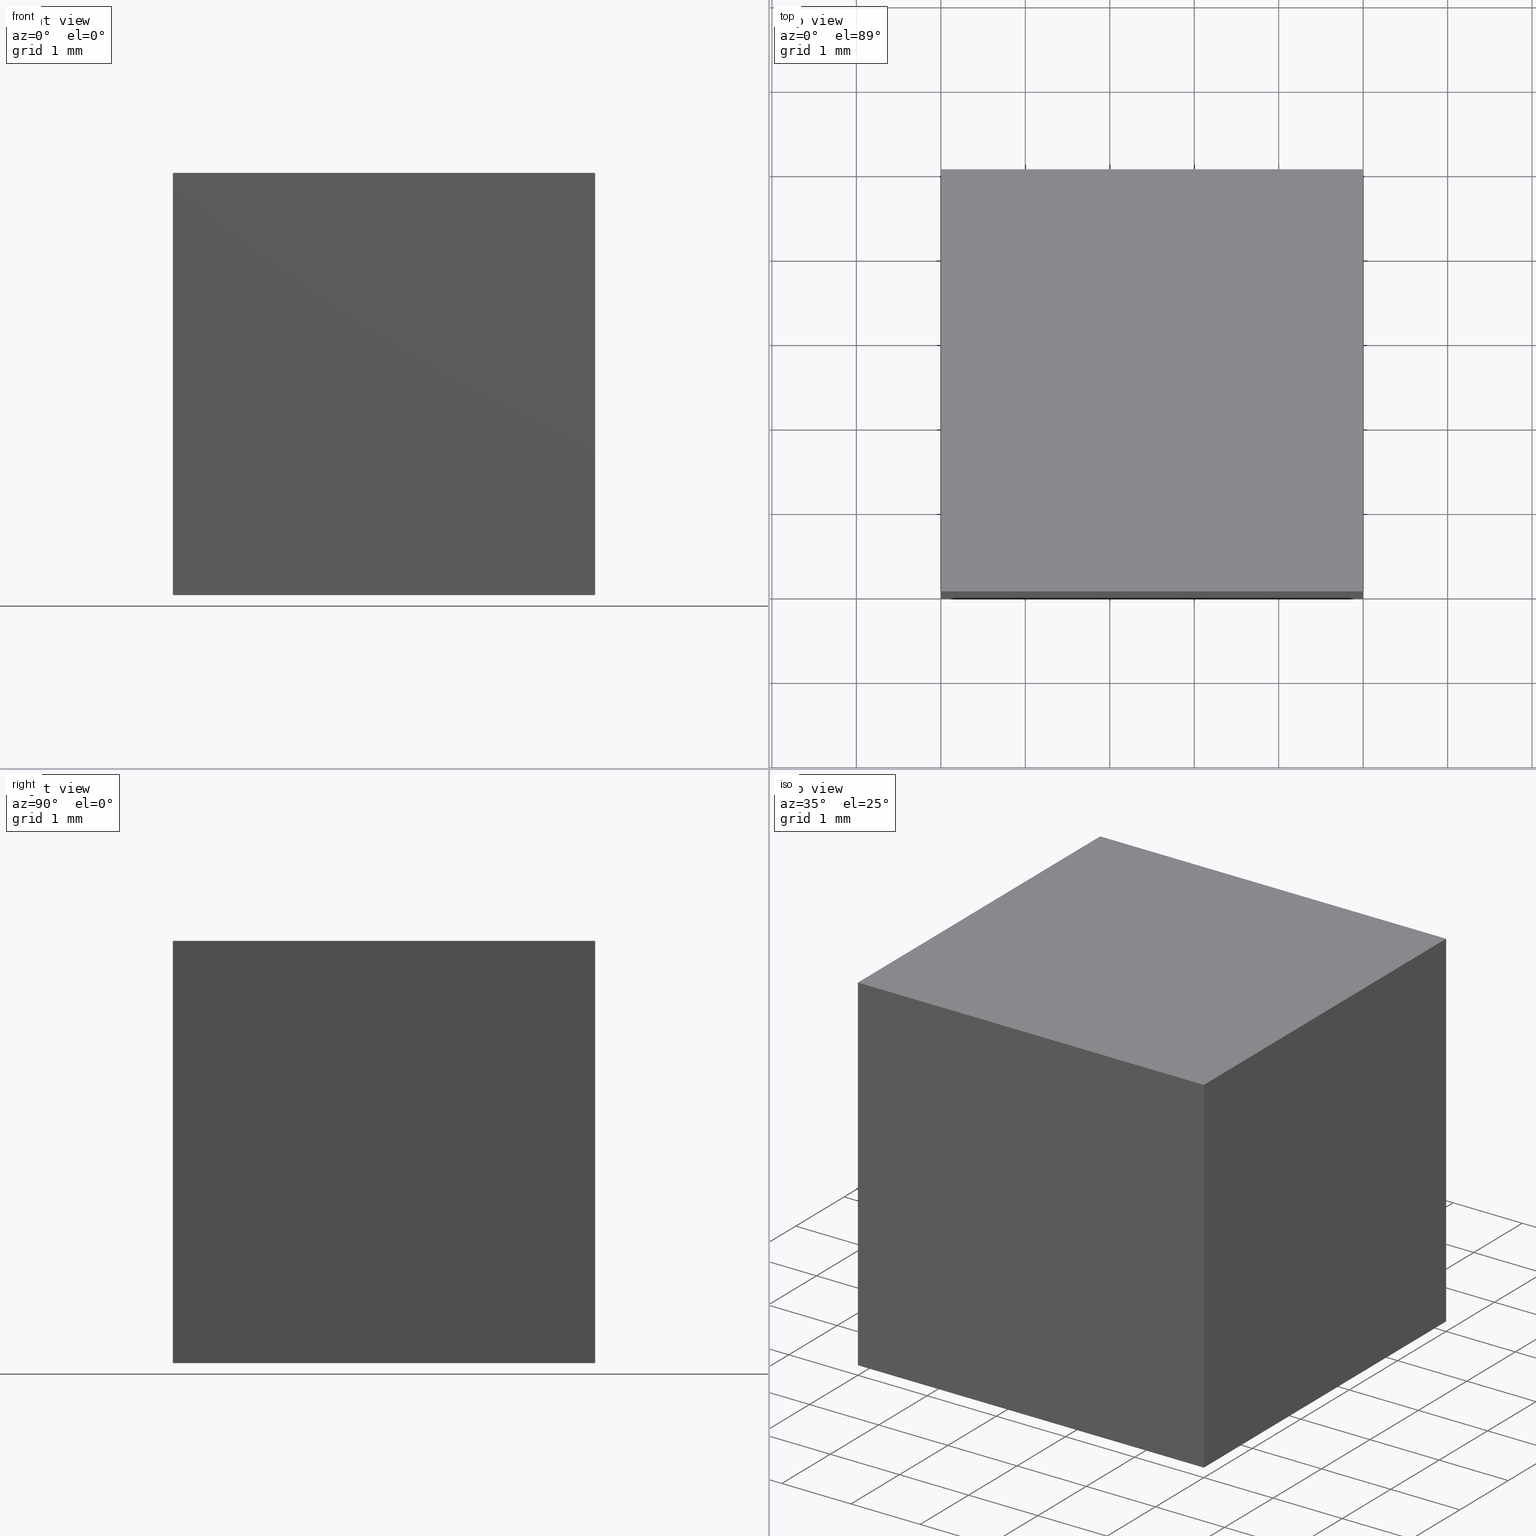
[diagram: canonical four-view strip — front | top / right | iso, engineering-drawing reading convention]
A machine part, canonical four-view strip (front | top / right | iso — engineering-drawing reading convention). The complete STEP part file that produces these views, byte-faithful:
ISO-10303-21;
HEADER;
FILE_DESCRIPTION (( 'STEP AP214' ),
    '1' );
FILE_NAME ('352500.STEP',
    '2019-08-15T01:43:24',
    ( 'user' ),
    ( '΢���й�' ),
    'SwSTEP 2.0',
    'SolidWorks 2016',
    '' );
FILE_SCHEMA (( 'AUTOMOTIVE_DESIGN' ));
ENDSEC;

DATA;
#1 = AXIS2_PLACEMENT_3D ( 'NONE', #292, #79, #125 ) ;
#2 = ORIENTED_EDGE ( 'NONE', *, *, #100, .T. ) ;
#3 = EDGE_CURVE ( 'NONE', #253, #135, #205, .T. ) ;
#4 = PRESENTATION_STYLE_ASSIGNMENT (( #247 ) ) ;
#5 = LINE ( 'NONE', #276, #248 ) ;
#6 = UNCERTAINTY_MEASURE_WITH_UNIT (LENGTH_MEASURE( 1.000000000000000100E-005 ), #156, 'distance_accuracy_value', 'NONE');
#7 = CARTESIAN_POINT ( 'NONE',  ( 0.0000000000000000000, 5.000000000000000000, 0.0000000000000000000 ) ) ;
#8 = DIRECTION ( 'NONE',  ( -0.0000000000000000000, 1.000000000000000000, 0.0000000000000000000 ) ) ;
#9 = DIRECTION ( 'NONE',  ( -1.000000000000000000, 0.0000000000000000000, 1.734723475976807100E-016 ) ) ;
#10 = CARTESIAN_POINT ( 'NONE',  ( 0.0000000000000000000, 5.000000000000000000, -5.000000000000000000 ) ) ;
#11 = CARTESIAN_POINT ( 'NONE',  ( 0.0000000000000000000, 5.000000000000000000, 0.0000000000000000000 ) ) ;
#12 = FILL_AREA_STYLE_COLOUR ( '', #222 ) ;
#13 = ORIENTED_EDGE ( 'NONE', *, *, #3, .F. ) ;
#14 = CARTESIAN_POINT ( 'NONE',  ( 0.0000000000000000000, 0.0000000000000000000, 0.0000000000000000000 ) ) ;
#15 =( NAMED_UNIT ( * ) PLANE_ANGLE_UNIT ( ) SI_UNIT ( $, .RADIAN. ) );
#16 = CARTESIAN_POINT ( 'NONE',  ( 0.0000000000000000000, 5.000000000000000000, 0.0000000000000000000 ) ) ;
#17 = VERTEX_POINT ( 'NONE', #10 ) ;
#18 = AXIS2_PLACEMENT_3D ( 'NONE', #62, #226, #41 ) ;
#19 = ORIENTED_EDGE ( 'NONE', *, *, #47, .F. ) ;
#20 = EDGE_CURVE ( 'NONE', #232, #64, #5, .T. ) ;
#21 = FACE_OUTER_BOUND ( 'NONE', #280, .T. ) ;
#22 = CLOSED_SHELL ( 'NONE', ( #56, #224, #272, #174, #246 ) ) ;
#23 = PRESENTATION_STYLE_ASSIGNMENT (( #296 ) ) ;
#24 = EDGE_CURVE ( 'NONE', #227, #69, #118, .T. ) ;
#25 = FACE_OUTER_BOUND ( 'NONE', #199, .T. ) ;
#26 = SHAPE_DEFINITION_REPRESENTATION ( #257, #60 ) ;
#27 = AXIS2_PLACEMENT_3D ( 'NONE', #11, #8, #148 ) ;
#28 = LINE ( 'NONE', #149, #85 ) ;
#29 = FACE_OUTER_BOUND ( 'NONE', #140, .T. ) ;
#30 = PRODUCT_DEFINITION ( 'δ֪', '', #43, #124 ) ;
#31 = DIRECTION ( 'NONE',  ( -0.0000000000000000000, -1.000000000000000000, -0.0000000000000000000 ) ) ;
#32 = CARTESIAN_POINT ( 'NONE',  ( -5.000000000000000000, -0.0000000000000000000, -4.999999999999999100 ) ) ;
#33 = VECTOR ( 'NONE', #31, 1000.000000000000000 ) ;
#34 = CARTESIAN_POINT ( 'NONE',  ( -5.000000000000000000, 0.0000000000000000000, 0.0000000000000000000 ) ) ;
#35 = ORIENTED_EDGE ( 'NONE', *, *, #191, .T. ) ;
#36 = DIRECTION ( 'NONE',  ( 0.0000000000000000000, 1.000000000000000000, 0.0000000000000000000 ) ) ;
#37 = DIRECTION ( 'NONE',  ( 0.0000000000000000000, -0.0000000000000000000, 1.000000000000000000 ) ) ;
#38 = FACE_OUTER_BOUND ( 'NONE', #258, .T. ) ;
#39 = ADVANCED_FACE ( 'NONE', ( #183 ), #239, .F. ) ;
#40 = EDGE_CURVE ( 'NONE', #17, #253, #28, .T. ) ;
#41 = DIRECTION ( 'NONE',  ( 1.000000000000000000, 0.0000000000000000000, 0.0000000000000000000 ) ) ;
#42 = LINE ( 'NONE', #166, #283 ) ;
#43 = PRODUCT_DEFINITION_FORMATION_WITH_SPECIFIED_SOURCE ( '�κ�', '', #141, .NOT_KNOWN. ) ;
#44 = VERTEX_POINT ( 'NONE', #32 ) ;
#45 = ORIENTED_EDGE ( 'NONE', *, *, #191, .F. ) ;
#46 = ORIENTED_EDGE ( 'NONE', *, *, #207, .T. ) ;
#47 = EDGE_CURVE ( 'NONE', #70, #227, #180, .T. ) ;
#48 = CARTESIAN_POINT ( 'NONE',  ( 0.0000000000000000000, 0.0000000000000000000, 0.0000000000000000000 ) ) ;
#49 = DIRECTION ( 'NONE',  ( -0.7071067811865475700, 0.0000000000000000000, -0.7071067811865474600 ) ) ;
#50 = CARTESIAN_POINT ( 'NONE',  ( 0.0000000000000000000, 5.000000000000000000, 0.0000000000000000000 ) ) ;
#51 = CARTESIAN_POINT ( 'NONE',  ( -5.000000000000000000, 5.000000000000000000, -4.999999999999999100 ) ) ;
#52 = DIRECTION ( 'NONE',  ( -0.0000000000000000000, -1.000000000000000000, -0.0000000000000000000 ) ) ;
#53 = SURFACE_SIDE_STYLE ('',( #86 ) ) ;
#54 = DIRECTION ( 'NONE',  ( -0.0000000000000000000, -0.0000000000000000000, -1.000000000000000000 ) ) ;
#55 = AXIS2_PLACEMENT_3D ( 'NONE', #7, #263, #99 ) ;
#56 = ADVANCED_FACE ( 'NONE', ( #273 ), #213, .F. ) ;
#57 = ORIENTED_EDGE ( 'NONE', *, *, #147, .T. ) ;
#58 =( NAMED_UNIT ( * ) SI_UNIT ( $, .STERADIAN. ) SOLID_ANGLE_UNIT ( ) );
#59 = PRODUCT_RELATED_PRODUCT_CATEGORY ( 'part', '', ( #141 ) ) ;
#60 = ADVANCED_BREP_SHAPE_REPRESENTATION ( '352500', ( #287, #146, #18 ), #175 ) ;
#61 = VECTOR ( 'NONE', #104, 1000.000000000000000 ) ;
#62 = CARTESIAN_POINT ( 'NONE',  ( 0.0000000000000000000, 0.0000000000000000000, 0.0000000000000000000 ) ) ;
#63 = AXIS2_PLACEMENT_3D ( 'NONE', #169, #216, #289 ) ;
#64 = VERTEX_POINT ( 'NONE', #34 ) ;
#65 = SURFACE_STYLE_FILL_AREA ( #277 ) ;
#66 = ORIENTED_EDGE ( 'NONE', *, *, #40, .T. ) ;
#67 = EDGE_CURVE ( 'NONE', #44, #232, #163, .T. ) ;
#68 = ORIENTED_EDGE ( 'NONE', *, *, #88, .T. ) ;
#69 = VERTEX_POINT ( 'NONE', #102 ) ;
#70 = VERTEX_POINT ( 'NONE', #173 ) ;
#71 = ORIENTED_EDGE ( 'NONE', *, *, #3, .T. ) ;
#72 = CARTESIAN_POINT ( 'NONE',  ( -5.000000000000000000, 0.0000000000000000000, -4.999999999999999100 ) ) ;
#73 = DIRECTION ( 'NONE',  ( 0.7071067811865475700, 0.0000000000000000000, 0.7071067811865474600 ) ) ;
#74 = DIRECTION ( 'NONE',  ( 0.7071067811865474600, 0.0000000000000000000, -0.7071067811865475700 ) ) ;
#75 = CARTESIAN_POINT ( 'NONE',  ( 0.0000000000000000000, 5.000000000000000000, 0.0000000000000000000 ) ) ;
#76 = DIRECTION ( 'NONE',  ( 0.7071067811865475700, 0.0000000000000000000, 0.7071067811865474600 ) ) ;
#77 = LINE ( 'NONE', #244, #90 ) ;
#78 = CARTESIAN_POINT ( 'NONE',  ( 0.0000000000000000000, 0.0000000000000000000, -5.000000000000000000 ) ) ;
#79 = DIRECTION ( 'NONE',  ( -0.0000000000000000000, 0.0000000000000000000, 1.000000000000000000 ) ) ;
#80 = ORIENTED_EDGE ( 'NONE', *, *, #47, .T. ) ;
#81 = CARTESIAN_POINT ( 'NONE',  ( -5.000000000000000000, 5.000000000000000000, -4.999999999999999100 ) ) ;
#82 = FILL_AREA_STYLE_COLOUR ( '', #204 ) ;
#83 = ADVANCED_FACE ( 'NONE', ( #38 ), #129, .T. ) ;
#84 =( NAMED_UNIT ( * ) PLANE_ANGLE_UNIT ( ) SI_UNIT ( $, .RADIAN. ) );
#85 = VECTOR ( 'NONE', #9, 1000.000000000000000 ) ;
#86 = SURFACE_STYLE_FILL_AREA ( #218 ) ;
#87 =( LENGTH_UNIT ( ) NAMED_UNIT ( * ) SI_UNIT ( .MILLI., .METRE. ) );
#88 = EDGE_CURVE ( 'NONE', #69, #70, #212, .T. ) ;
#89 = PRODUCT_CONTEXT ( 'NONE', #133, 'mechanical' ) ;
#90 = VECTOR ( 'NONE', #52, 1000.000000000000000 ) ;
#91 = VECTOR ( 'NONE', #192, 1000.000000000000000 ) ;
#92 = AXIS2_PLACEMENT_3D ( 'NONE', #122, #103, #265 ) ;
#93 = ORIENTED_EDGE ( 'NONE', *, *, #164, .T. ) ;
#94 = VECTOR ( 'NONE', #54, 1000.000000000000000 ) ;
#95 = AXIS2_PLACEMENT_3D ( 'NONE', #121, #74, #49 ) ;
#96 = LINE ( 'NONE', #188, #33 ) ;
#97 = ORIENTED_EDGE ( 'NONE', *, *, #181, .F. ) ;
#98 = VECTOR ( 'NONE', #297, 1000.000000000000000 ) ;
#99 = DIRECTION ( 'NONE',  ( 0.0000000000000000000, 0.0000000000000000000, 1.000000000000000000 ) ) ;
#100 = EDGE_CURVE ( 'NONE', #64, #44, #282, .T. ) ;
#101 = PLANE ( 'NONE',  #92 ) ;
#102 = CARTESIAN_POINT ( 'NONE',  ( -5.000000000000000000, 5.000000000000000000, 0.0000000000000000000 ) ) ;
#103 = DIRECTION ( 'NONE',  ( -0.0000000000000000000, 1.000000000000000000, 0.0000000000000000000 ) ) ;
#104 = DIRECTION ( 'NONE',  ( -1.000000000000000000, -0.0000000000000000000, -0.0000000000000000000 ) ) ;
#105 = CARTESIAN_POINT ( 'NONE',  ( -5.000000000000000000, 5.000000000000000000, -4.999999999999999100 ) ) ;
#106 = DIRECTION ( 'NONE',  ( 0.7071067811865474600, 0.0000000000000000000, -0.7071067811865475700 ) ) ;
#107 = CARTESIAN_POINT ( 'NONE',  ( 0.0000000000000000000, 0.0000000000000000000, 0.0000000000000000000 ) ) ;
#108 = STYLED_ITEM ( 'NONE', ( #23 ), #287 ) ;
#109 = SURFACE_SIDE_STYLE ('',( #65 ) ) ;
#110 = ORIENTED_EDGE ( 'NONE', *, *, #100, .F. ) ;
#111 = ORIENTED_EDGE ( 'NONE', *, *, #67, .T. ) ;
#112 = ORIENTED_EDGE ( 'NONE', *, *, #147, .F. ) ;
#113 = UNCERTAINTY_MEASURE_WITH_UNIT (LENGTH_MEASURE( 1.000000000000000100E-005 ), #87, 'distance_accuracy_value', 'NONE');
#114 = EDGE_LOOP ( 'NONE', ( #132, #45, #230, #198 ) ) ;
#115 = EDGE_CURVE ( 'NONE', #227, #232, #160, .T. ) ;
#116 = AXIS2_PLACEMENT_3D ( 'NONE', #217, #299, #221 ) ;
#117 = ORIENTED_EDGE ( 'NONE', *, *, #134, .F. ) ;
#118 = LINE ( 'NONE', #197, #61 ) ;
#119 = CARTESIAN_POINT ( 'NONE',  ( -5.000000000000000000, 5.000000000000000000, -4.999999999999999100 ) ) ;
#120 = AXIS2_PLACEMENT_3D ( 'NONE', #16, #36, #37 ) ;
#121 = CARTESIAN_POINT ( 'NONE',  ( -5.000000000000000000, 5.000000000000000000, -4.999999999999999100 ) ) ;
#122 = CARTESIAN_POINT ( 'NONE',  ( 0.0000000000000000000, 0.0000000000000000000, 0.0000000000000000000 ) ) ;
#123 = DIRECTION ( 'NONE',  ( -0.0000000000000000000, -1.000000000000000000, -0.0000000000000000000 ) ) ;
#124 = PRODUCT_DEFINITION_CONTEXT ( 'detailed design', #249, 'design' ) ;
#125 = DIRECTION ( 'NONE',  ( 1.000000000000000000, 0.0000000000000000000, 0.0000000000000000000 ) ) ;
#126 = DIRECTION ( 'NONE',  ( 0.0000000000000000000, -1.000000000000000000, 0.0000000000000000000 ) ) ;
#127 = FILL_AREA_STYLE ('',( #82 ) ) ;
#128 = COLOUR_RGB ( '',1.000000000000000000, 1.000000000000000000, 1.000000000000000000 ) ;
#129 = PLANE ( 'NONE',  #120 ) ;
#130 =( LENGTH_UNIT ( ) NAMED_UNIT ( * ) SI_UNIT ( .MILLI., .METRE. ) );
#131 = ADVANCED_FACE ( 'NONE', ( #29 ), #295, .T. ) ;
#132 = ORIENTED_EDGE ( 'NONE', *, *, #286, .T. ) ;
#133 = APPLICATION_CONTEXT ( 'automotive_design' ) ;
#134 = EDGE_CURVE ( 'NONE', #70, #44, #144, .T. ) ;
#135 = VERTEX_POINT ( 'NONE', #241 ) ;
#136 = PRESENTATION_LAYER_ASSIGNMENT (  '', '', ( #108 ) ) ;
#137 = ORIENTED_EDGE ( 'NONE', *, *, #20, .T. ) ;
#138 = STYLED_ITEM ( 'NONE', ( #200 ), #146 ) ;
#139 = FACE_OUTER_BOUND ( 'NONE', #178, .T. ) ;
#140 = EDGE_LOOP ( 'NONE', ( #110, #97, #68, #182 ) ) ;
#141 = PRODUCT ( '352500', '352500', '', ( #89 ) ) ;
#142 =( GEOMETRIC_REPRESENTATION_CONTEXT ( 3 ) GLOBAL_UNCERTAINTY_ASSIGNED_CONTEXT ( ( #6 ) ) GLOBAL_UNIT_ASSIGNED_CONTEXT ( ( #156, #15, #219 ) ) REPRESENTATION_CONTEXT ( 'NONE', 'WORKASPACE' ) );
#143 = VECTOR ( 'NONE', #123, 1000.000000000000000 ) ;
#144 = LINE ( 'NONE', #51, #206 ) ;
#145 = CARTESIAN_POINT ( 'NONE',  ( 0.0000000000000000000, 5.000000000000000000, 0.0000000000000000000 ) ) ;
#146 = MANIFOLD_SOLID_BREP ( '͹̨-����2', #176 ) ;
#147 = EDGE_CURVE ( 'NONE', #187, #135, #281, .T. ) ;
#148 = DIRECTION ( 'NONE',  ( 0.0000000000000000000, -0.0000000000000000000, 1.000000000000000000 ) ) ;
#149 = CARTESIAN_POINT ( 'NONE',  ( 0.0000000000000000000, 5.000000000000000000, -5.000000000000000000 ) ) ;
#150 =( NAMED_UNIT ( * ) SI_UNIT ( $, .STERADIAN. ) SOLID_ANGLE_UNIT ( ) );
#151 = SURFACE_STYLE_FILL_AREA ( #127 ) ;
#152 = ORIENTED_EDGE ( 'NONE', *, *, #20, .F. ) ;
#153 = CARTESIAN_POINT ( 'NONE',  ( 0.0000000000000000000, 0.0000000000000000000, 0.0000000000000000000 ) ) ;
#154 = FACE_OUTER_BOUND ( 'NONE', #159, .T. ) ;
#155 = DIRECTION ( 'NONE',  ( -1.000000000000000000, 0.0000000000000000000, 0.0000000000000000000 ) ) ;
#156 =( LENGTH_UNIT ( ) NAMED_UNIT ( * ) SI_UNIT ( .MILLI., .METRE. ) );
#157 = ADVANCED_FACE ( 'NONE', ( #262 ), #240, .T. ) ;
#158 = MECHANICAL_DESIGN_GEOMETRIC_PRESENTATION_REPRESENTATION (  '', ( #108 ), #142 ) ;
#159 = EDGE_LOOP ( 'NONE', ( #46, #93, #66 ) ) ;
#160 = LINE ( 'NONE', #243, #275 ) ;
#161 = AXIS2_PLACEMENT_3D ( 'NONE', #105, #155, #194 ) ;
#162 = LINE ( 'NONE', #119, #208 ) ;
#163 = LINE ( 'NONE', #14, #98 ) ;
#164 = EDGE_CURVE ( 'NONE', #165, #17, #269, .T. ) ;
#165 = VERTEX_POINT ( 'NONE', #75 ) ;
#166 = CARTESIAN_POINT ( 'NONE',  ( -5.000000000000000000, 5.000000000000000000, 0.0000000000000000000 ) ) ;
#167 = PRESENTATION_LAYER_ASSIGNMENT (  '', '', ( #138 ) ) ;
#168 = DIRECTION ( 'NONE',  ( -0.7071067811865475700, 0.0000000000000000000, -0.7071067811865474600 ) ) ;
#169 = CARTESIAN_POINT ( 'NONE',  ( 0.0000000000000000000, 0.0000000000000000000, 0.0000000000000000000 ) ) ;
#170 = DIRECTION ( 'NONE',  ( 0.0000000000000000000, -1.000000000000000000, 0.0000000000000000000 ) ) ;
#171 =( NAMED_UNIT ( * ) PLANE_ANGLE_UNIT ( ) SI_UNIT ( $, .RADIAN. ) );
#172 = SURFACE_SIDE_STYLE ('',( #151 ) ) ;
#173 = CARTESIAN_POINT ( 'NONE',  ( -5.000000000000000000, 5.000000000000000000, -4.999999999999999100 ) ) ;
#174 = ADVANCED_FACE ( 'NONE', ( #154 ), #214, .T. ) ;
#175 =( GEOMETRIC_REPRESENTATION_CONTEXT ( 3 ) GLOBAL_UNCERTAINTY_ASSIGNED_CONTEXT ( ( #201 ) ) GLOBAL_UNIT_ASSIGNED_CONTEXT ( ( #130, #171, #193 ) ) REPRESENTATION_CONTEXT ( 'NONE', 'WORKASPACE' ) );
#176 = CLOSED_SHELL ( 'NONE', ( #298, #131, #157, #83, #39 ) ) ;
#177 = VERTEX_POINT ( 'NONE', #48 ) ;
#178 = EDGE_LOOP ( 'NONE', ( #57, #13, #190, #35 ) ) ;
#179 = APPLICATION_PROTOCOL_DEFINITION ( 'draft international standard', 'automotive_design', 1998, #249 ) ;
#180 = LINE ( 'NONE', #264, #234 ) ;
#181 = EDGE_CURVE ( 'NONE', #69, #64, #42, .T. ) ;
#182 = ORIENTED_EDGE ( 'NONE', *, *, #134, .T. ) ;
#183 = FACE_OUTER_BOUND ( 'NONE', #300, .T. ) ;
#184 = ORIENTED_EDGE ( 'NONE', *, *, #115, .F. ) ;
#185 = AXIS2_PLACEMENT_3D ( 'NONE', #271, #106, #168 ) ;
#186 = ORIENTED_EDGE ( 'NONE', *, *, #254, .F. ) ;
#187 = VERTEX_POINT ( 'NONE', #288 ) ;
#188 = CARTESIAN_POINT ( 'NONE',  ( 0.0000000000000000000, 5.000000000000000000, -5.000000000000000000 ) ) ;
#189 = ORIENTED_EDGE ( 'NONE', *, *, #286, .F. ) ;
#190 = ORIENTED_EDGE ( 'NONE', *, *, #40, .F. ) ;
#191 = EDGE_CURVE ( 'NONE', #17, #187, #96, .T. ) ;
#192 = DIRECTION ( 'NONE',  ( 0.0000000000000000000, 0.0000000000000000000, -1.000000000000000000 ) ) ;
#193 =( NAMED_UNIT ( * ) SI_UNIT ( $, .STERADIAN. ) SOLID_ANGLE_UNIT ( ) );
#194 = DIRECTION ( 'NONE',  ( 0.0000000000000000000, 0.0000000000000000000, 1.000000000000000000 ) ) ;
#195 = ORIENTED_EDGE ( 'NONE', *, *, #181, .T. ) ;
#196 = CARTESIAN_POINT ( 'NONE',  ( -5.000000000000000000, -0.0000000000000000000, -4.999999999999999100 ) ) ;
#197 = CARTESIAN_POINT ( 'NONE',  ( -5.000000000000000000, 5.000000000000000000, 0.0000000000000000000 ) ) ;
#198 = ORIENTED_EDGE ( 'NONE', *, *, #278, .T. ) ;
#199 = EDGE_LOOP ( 'NONE', ( #186, #112, #189 ) ) ;
#200 = PRESENTATION_STYLE_ASSIGNMENT (( #293 ) ) ;
#201 = UNCERTAINTY_MEASURE_WITH_UNIT (LENGTH_MEASURE( 1.000000000000000100E-005 ), #130, 'distance_accuracy_value', 'NONE');
#202 = APPLICATION_PROTOCOL_DEFINITION ( 'draft international standard', 'automotive_design', 1998, #133 ) ;
#203 = VECTOR ( 'NONE', #76, 1000.000000000000000 ) ;
#204 = COLOUR_RGB ( '',1.000000000000000000, 1.000000000000000000, 1.000000000000000000 ) ;
#205 = LINE ( 'NONE', #291, #143 ) ;
#206 = VECTOR ( 'NONE', #126, 1000.000000000000000 ) ;
#207 = EDGE_CURVE ( 'NONE', #253, #165, #162, .T. ) ;
#208 = VECTOR ( 'NONE', #73, 1000.000000000000000 ) ;
#209 = ORIENTED_EDGE ( 'NONE', *, *, #207, .F. ) ;
#210 = VECTOR ( 'NONE', #270, 1000.000000000000000 ) ;
#211 = ORIENTED_EDGE ( 'NONE', *, *, #24, .F. ) ;
#212 = LINE ( 'NONE', #81, #284 ) ;
#213 = PLANE ( 'NONE',  #95 ) ;
#214 = PLANE ( 'NONE',  #27 ) ;
#215 = FACE_OUTER_BOUND ( 'NONE', #114, .T. ) ;
#216 = DIRECTION ( 'NONE',  ( 0.0000000000000000000, 1.000000000000000000, 0.0000000000000000000 ) ) ;
#217 = CARTESIAN_POINT ( 'NONE',  ( 0.0000000000000000000, 5.000000000000000000, -5.000000000000000000 ) ) ;
#218 = FILL_AREA_STYLE ('',( #12 ) ) ;
#219 =( NAMED_UNIT ( * ) SI_UNIT ( $, .STERADIAN. ) SOLID_ANGLE_UNIT ( ) );
#220 = DIRECTION ( 'NONE',  ( -0.0000000000000000000, -0.0000000000000000000, -1.000000000000000000 ) ) ;
#221 = DIRECTION ( 'NONE',  ( 1.000000000000000000, 0.0000000000000000000, -1.734723475976807100E-016 ) ) ;
#222 = COLOUR_RGB ( '',1.000000000000000000, 1.000000000000000000, 1.000000000000000000 ) ;
#223 = STYLED_ITEM ( 'NONE', ( #4 ), #60 ) ;
#224 = ADVANCED_FACE ( 'NONE', ( #215 ), #285, .F. ) ;
#225 =( NAMED_UNIT ( * ) PLANE_ANGLE_UNIT ( ) SI_UNIT ( $, .RADIAN. ) );
#226 = DIRECTION ( 'NONE',  ( 0.0000000000000000000, 0.0000000000000000000, 1.000000000000000000 ) ) ;
#227 = VERTEX_POINT ( 'NONE', #145 ) ;
#228 = ORIENTED_EDGE ( 'NONE', *, *, #24, .T. ) ;
#229 = MECHANICAL_DESIGN_GEOMETRIC_PRESENTATION_REPRESENTATION (  '', ( #138 ), #250 ) ;
#230 = ORIENTED_EDGE ( 'NONE', *, *, #164, .F. ) ;
#231 = PRESENTATION_LAYER_ASSIGNMENT (  '', '', ( #223 ) ) ;
#232 = VERTEX_POINT ( 'NONE', #153 ) ;
#233 = ORIENTED_EDGE ( 'NONE', *, *, #88, .F. ) ;
#234 = VECTOR ( 'NONE', #236, 1000.000000000000000 ) ;
#235 = DIRECTION ( 'NONE',  ( 0.0000000000000000000, -1.000000000000000000, 0.0000000000000000000 ) ) ;
#236 = DIRECTION ( 'NONE',  ( 0.7071067811865475700, 0.0000000000000000000, 0.7071067811865474600 ) ) ;
#237 = EDGE_LOOP ( 'NONE', ( #301, #260, #209, #71 ) ) ;
#238 = CARTESIAN_POINT ( 'NONE',  ( -5.000000000000000000, 5.000000000000000000, -4.999999999999999100 ) ) ;
#239 = PLANE ( 'NONE',  #63 ) ;
#240 = PLANE ( 'NONE',  #1 ) ;
#241 = CARTESIAN_POINT ( 'NONE',  ( -5.000000000000000000, 0.0000000000000000000, -4.999999999999999100 ) ) ;
#242 = PLANE ( 'NONE',  #185 ) ;
#243 = CARTESIAN_POINT ( 'NONE',  ( 0.0000000000000000000, 5.000000000000000000, 0.0000000000000000000 ) ) ;
#244 = CARTESIAN_POINT ( 'NONE',  ( 0.0000000000000000000, 5.000000000000000000, 0.0000000000000000000 ) ) ;
#245 =( LENGTH_UNIT ( ) NAMED_UNIT ( * ) SI_UNIT ( .MILLI., .METRE. ) );
#246 = ADVANCED_FACE ( 'NONE', ( #25 ), #101, .F. ) ;
#247 = SURFACE_STYLE_USAGE ( .BOTH. , #109 ) ;
#248 = VECTOR ( 'NONE', #268, 1000.000000000000000 ) ;
#249 = APPLICATION_CONTEXT ( 'automotive_design' ) ;
#250 =( GEOMETRIC_REPRESENTATION_CONTEXT ( 3 ) GLOBAL_UNCERTAINTY_ASSIGNED_CONTEXT ( ( #255 ) ) GLOBAL_UNIT_ASSIGNED_CONTEXT ( ( #245, #84, #150 ) ) REPRESENTATION_CONTEXT ( 'NONE', 'WORKASPACE' ) );
#251 = MECHANICAL_DESIGN_GEOMETRIC_PRESENTATION_REPRESENTATION (  '', ( #223 ), #274 ) ;
#252 = EDGE_LOOP ( 'NONE', ( #152, #184, #228, #195 ) ) ;
#253 = VERTEX_POINT ( 'NONE', #238 ) ;
#254 = EDGE_CURVE ( 'NONE', #135, #177, #279, .T. ) ;
#255 = UNCERTAINTY_MEASURE_WITH_UNIT (LENGTH_MEASURE( 1.000000000000000100E-005 ), #245, 'distance_accuracy_value', 'NONE');
#256 = ORIENTED_EDGE ( 'NONE', *, *, #115, .T. ) ;
#257 = PRODUCT_DEFINITION_SHAPE ( 'NONE', 'NONE',  #30 ) ;
#258 = EDGE_LOOP ( 'NONE', ( #19, #233, #211 ) ) ;
#259 = VECTOR ( 'NONE', #267, 1000.000000000000000 ) ;
#260 = ORIENTED_EDGE ( 'NONE', *, *, #278, .F. ) ;
#261 = ORIENTED_EDGE ( 'NONE', *, *, #67, .F. ) ;
#262 = FACE_OUTER_BOUND ( 'NONE', #252, .T. ) ;
#263 = DIRECTION ( 'NONE',  ( -1.000000000000000000, 0.0000000000000000000, 0.0000000000000000000 ) ) ;
#264 = CARTESIAN_POINT ( 'NONE',  ( 0.0000000000000000000, 5.000000000000000000, 0.0000000000000000000 ) ) ;
#265 = DIRECTION ( 'NONE',  ( 0.0000000000000000000, -0.0000000000000000000, 1.000000000000000000 ) ) ;
#266 = LINE ( 'NONE', #107, #259 ) ;
#267 = DIRECTION ( 'NONE',  ( 0.0000000000000000000, 0.0000000000000000000, -1.000000000000000000 ) ) ;
#268 = DIRECTION ( 'NONE',  ( -1.000000000000000000, -0.0000000000000000000, -0.0000000000000000000 ) ) ;
#269 = LINE ( 'NONE', #50, #91 ) ;
#270 = DIRECTION ( 'NONE',  ( -1.000000000000000000, 0.0000000000000000000, 1.734723475976807100E-016 ) ) ;
#271 = CARTESIAN_POINT ( 'NONE',  ( 0.0000000000000000000, 5.000000000000000000, 0.0000000000000000000 ) ) ;
#272 = ADVANCED_FACE ( 'NONE', ( #139 ), #294, .F. ) ;
#273 = FACE_OUTER_BOUND ( 'NONE', #237, .T. ) ;
#274 =( GEOMETRIC_REPRESENTATION_CONTEXT ( 3 ) GLOBAL_UNCERTAINTY_ASSIGNED_CONTEXT ( ( #113 ) ) GLOBAL_UNIT_ASSIGNED_CONTEXT ( ( #87, #225, #58 ) ) REPRESENTATION_CONTEXT ( 'NONE', 'WORKASPACE' ) );
#275 = VECTOR ( 'NONE', #170, 1000.000000000000000 ) ;
#276 = CARTESIAN_POINT ( 'NONE',  ( -5.000000000000000000, 0.0000000000000000000, 0.0000000000000000000 ) ) ;
#277 = FILL_AREA_STYLE ('',( #290 ) ) ;
#278 = EDGE_CURVE ( 'NONE', #165, #177, #77, .T. ) ;
#279 = LINE ( 'NONE', #72, #203 ) ;
#280 = EDGE_LOOP ( 'NONE', ( #261, #117, #80, #256 ) ) ;
#281 = LINE ( 'NONE', #78, #210 ) ;
#282 = LINE ( 'NONE', #196, #94 ) ;
#283 = VECTOR ( 'NONE', #235, 1000.000000000000000 ) ;
#284 = VECTOR ( 'NONE', #220, 1000.000000000000000 ) ;
#285 = PLANE ( 'NONE',  #55 ) ;
#286 = EDGE_CURVE ( 'NONE', #177, #187, #266, .T. ) ;
#287 = MANIFOLD_SOLID_BREP ( '͹̨-����1', #22 ) ;
#288 = CARTESIAN_POINT ( 'NONE',  ( 0.0000000000000000000, 0.0000000000000000000, -5.000000000000000000 ) ) ;
#289 = DIRECTION ( 'NONE',  ( 0.0000000000000000000, -0.0000000000000000000, 1.000000000000000000 ) ) ;
#290 = FILL_AREA_STYLE_COLOUR ( '', #128 ) ;
#291 = CARTESIAN_POINT ( 'NONE',  ( -5.000000000000000000, 5.000000000000000000, -4.999999999999999100 ) ) ;
#292 = CARTESIAN_POINT ( 'NONE',  ( -5.000000000000000000, 5.000000000000000000, 0.0000000000000000000 ) ) ;
#293 = SURFACE_STYLE_USAGE ( .BOTH. , #53 ) ;
#294 = PLANE ( 'NONE',  #116 ) ;
#295 = PLANE ( 'NONE',  #161 ) ;
#296 = SURFACE_STYLE_USAGE ( .BOTH. , #172 ) ;
#297 = DIRECTION ( 'NONE',  ( 0.7071067811865475700, 0.0000000000000000000, 0.7071067811865474600 ) ) ;
#298 = ADVANCED_FACE ( 'NONE', ( #21 ), #242, .T. ) ;
#299 = DIRECTION ( 'NONE',  ( 1.734723475976807100E-016, -0.0000000000000000000, 1.000000000000000000 ) ) ;
#300 = EDGE_LOOP ( 'NONE', ( #111, #137, #2 ) ) ;
#301 = ORIENTED_EDGE ( 'NONE', *, *, #254, .T. ) ;
ENDSEC;
END-ISO-10303-21;
